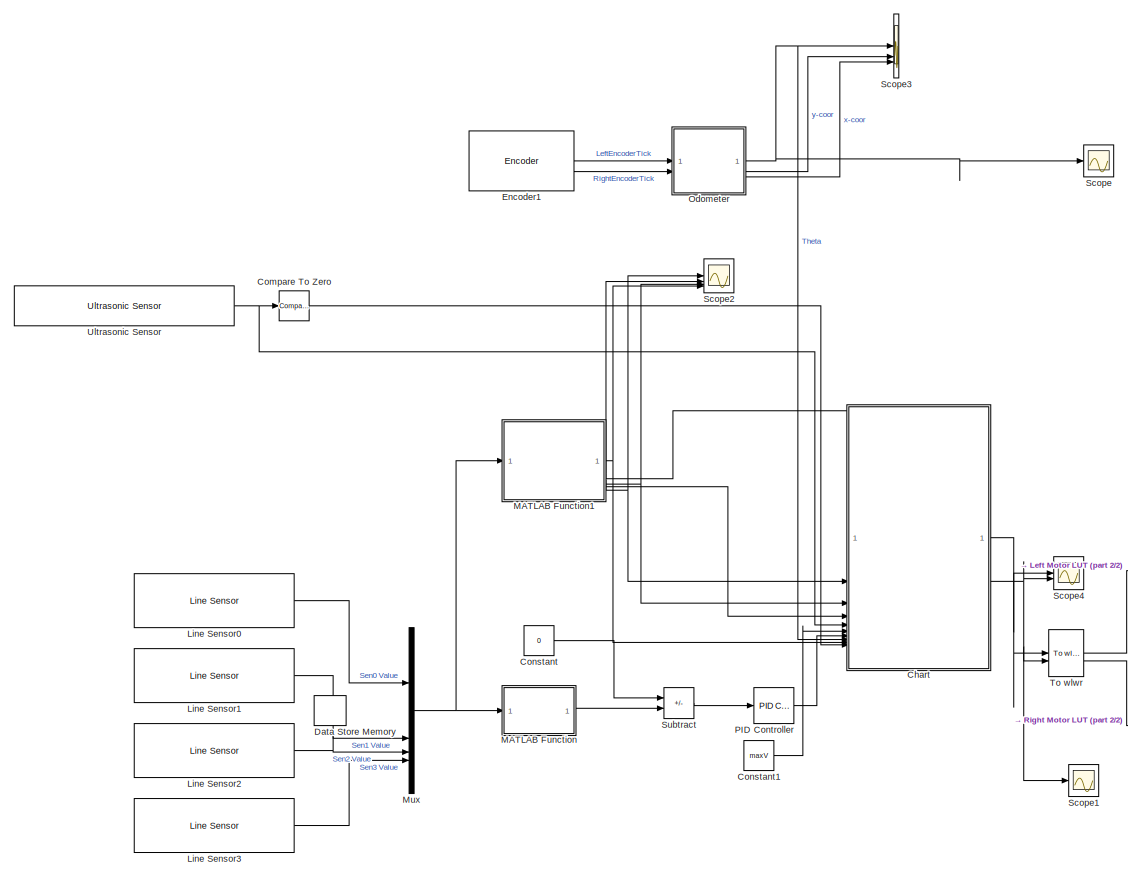
[diagram: root canvas - part 1/2, left side, full height]
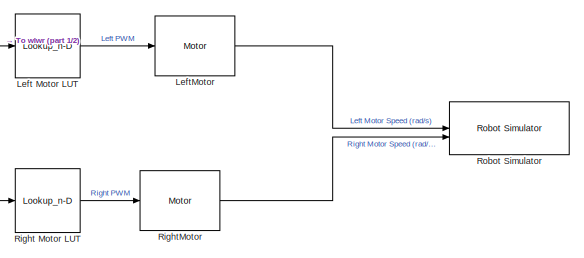
[diagram: root canvas - part 2/2, bottom right region]
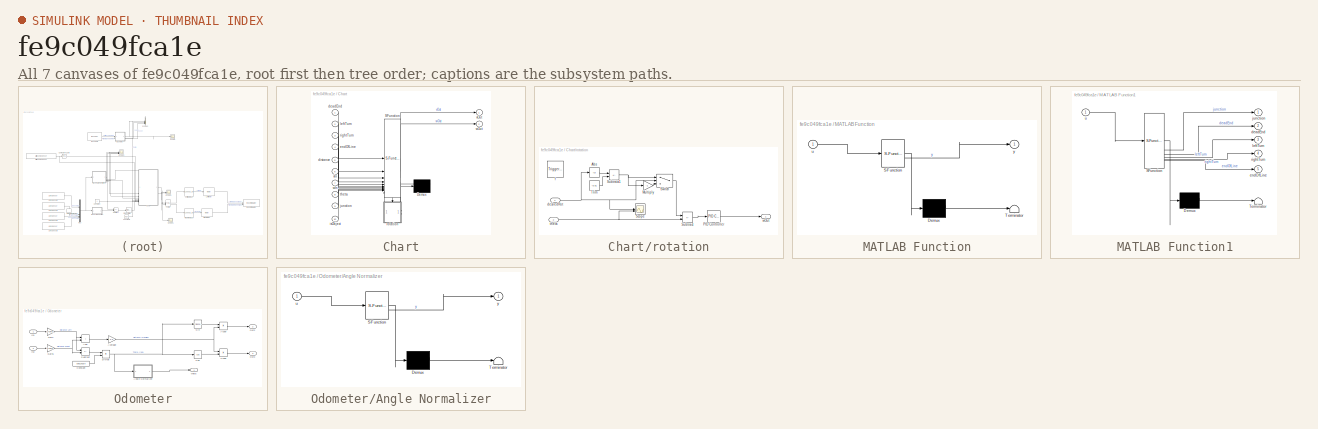
[diagram: thumbnail index - all 7 canvases of the model, root first then tree order]
MODEL slx_fe9c049fca1e
KIND model
CONFIG AbsTol = auto
CONFIG EnableMultiTasking = off
CONFIG FixedStep = 0.01
CONFIG MaxStep = auto
CONFIG MinStep = auto
CONFIG RelTol = 1e-3
CONFIG SampleTimeConstraint = Unconstrained
CONFIG SolverName = FixedStepDiscrete
CONFIG StartTime = 0.0
CONFIG StopTime = 60
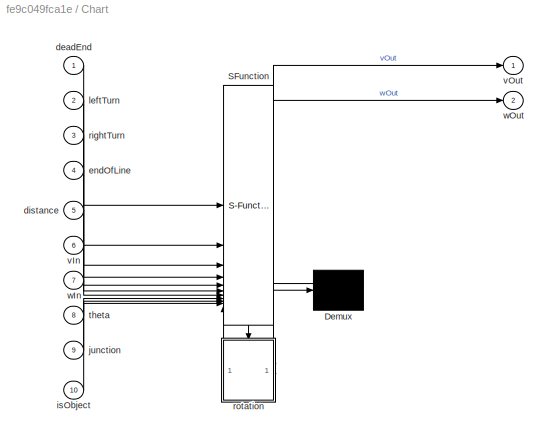
BLOCK [SubSystem] Chart
  ErrorFcn = Stateflow.Translate.translate
  PermitHierarchicalResolution = ExplicitOnly
  PortSchema = {"entries":[{"content":{"sides":[{"content":{"connectorIds":["In8","In9","In10","In4","In2","In3","In5","In6","In7"]},"type":"ConnectorPlacement.EquallySpacedRectSide","uuid":"57a3dc3c-5330-4212-9af6-f313022488fd"},{"content":{"connectorIds":["Out1","Out2"],"side":"RIGHT"},"type":"ConnectorPlacement.EquallySpacedRectSide","uuid":"1070cbf7-6ba4-437e-a2a0-cd8b795bb269"},{"content":{"connectorIds":["...<+301ch>
  SFBlockType = Chart
  TreatAsAtomicUnit = on
BLOCK [Demux] Chart/ Demux 
  Outputs = 1
BLOCK [S-Function] Chart/ SFunction 
  EnableBusSupport = on
  FunctionName = sf_sfun
  PortCounts = [11 5]
  SFcnIsStateOwnerBlock = off
  SFunctionDeploymentMode = off
  Tag = Stateflow S-Function 3
BLOCK [Inport] Chart/deadEnd
BLOCK [Inport] Chart/distance
  Port = 5
BLOCK [Inport] Chart/endOfLine
  Port = 4
BLOCK [Inport] Chart/isObject
  Port = 10
BLOCK [Inport] Chart/junction
  Port = 9
BLOCK [Inport] Chart/leftTurn
  Port = 2
BLOCK [Inport] Chart/rightTurn
  Port = 3
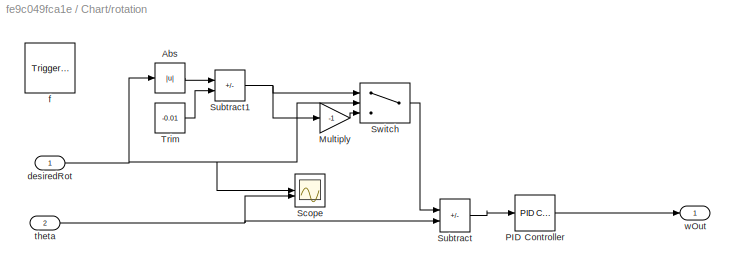
BLOCK [SubSystem] Chart/rotation
  PreDeleteFcn = Stateflow.SLINSF.SimulinkMan.removePreDeleteFcn
  UndoDeleteFcn = Stateflow.SLINSF.SimulinkMan.restorePreDeleteFcn
BLOCK [Abs] Chart/rotation/Abs
  SaturateOnIntegerOverflow = off
BLOCK [Gain] Chart/rotation/Multiply
  Gain = -1
BLOCK [Reference] Chart/rotation/PID Controller  REF=slpidlib/PID Controller
  LibrarySourceBlock = simulink/Continuous/PID Controller
  SourceBlock = slpidlib/PID Controller
  SourceType = PID 1dof
BLOCK [Scope] Chart/rotation/Scope
  Floating = off
  NumInputPorts = 2
  ScopeSpecificationString = Simulink.scopes.TimeScopeBlockCfg('CurrentConfiguration', extmgr.ConfigurationSet(extmgr.Configuration('Core','General UI',true),extmgr.Configuration('Core','Source UI',true),extmgr.Configuration('Sources','WiredSimulink',true,'DataLoggingVariableName','ScopeData3'),extmgr.Configuration('Visuals','Time Domain',true,'SerializedDisplays',{struct('MinYLimReal','-19.48538','MaxYLimReal','2.16504','YLa...<+1538ch>
BLOCK [Sum] Chart/rotation/Subtract
  IconShape = rectangular
  Inputs = +-
BLOCK [Sum] Chart/rotation/Subtract1
  IconShape = rectangular
  Inputs = +-
BLOCK [Switch] Chart/rotation/Switch
  Criteria = u2 > Threshold
  InputSameDT = off
  SaturateOnIntegerOverflow = off
BLOCK [Constant] Chart/rotation/Trim
  Value = -0.01
BLOCK [Inport] Chart/rotation/desiredRot
  OutDataTypeStr = double
  PortDimensions = 1
  SignalType = real
  VarSizeSig = No
BLOCK [TriggerPort] Chart/rotation/f
  CopyFcn = Stateflow.SLINSF.SimulinkMan.removeBlockPreDeleteFcn
  PreDeleteFcn = Stateflow.SLINSF.SimulinkMan.unsafePredeleteFcn
  StatesWhenEnabling = held
  TriggerType = function-call
  VariantControl = (inherit)
BLOCK [Inport] Chart/rotation/theta
  OutDataTypeStr = double
  Port = 2
  PortDimensions = 1
  SignalType = real
  VarSizeSig = No
BLOCK [Outport] Chart/rotation/wOut
BLOCK [Inport] Chart/theta
  Port = 8
BLOCK [Inport] Chart/vIn
  Port = 6
BLOCK [Outport] Chart/vOut
BLOCK [Inport] Chart/wIn
  Port = 7
BLOCK [Outport] Chart/wOut
  Port = 2
BLOCK [Reference] Compare To Zero  REF=simulink/Logic and Bit
Operations/Compare
To Zero
  SourceBlock = simulink/Logic and Bit\nOperations/Compare\nTo Zero
  SourceType = Compare To Zero
BLOCK [Constant] Constant
  Value = 0
BLOCK [Constant] Constant1
  Value = maxV
BLOCK [DataStoreMemory] Data Store Memory
  DataStoreName = objectDist
  ShowAdditionalParam = off
  WriteAfterWriteMsg = warning
BLOCK [Reference] Encoder1  REF=mobileRoboticsTrainingLib/Encoder
  SourceBlock = mobileRoboticsTrainingLib/Encoder
  SourceProductName = Mobile Robotics Training Library
  SourceType = Encoder Simulation
BLOCK [Lookup_n-D] Left Motor LUT
  BreakpointsForDimension1 = WheelSpeed
  ExtrapMethod = Clip
  InputPortMap = u0
  InternalRulePriority = Speed
  InterpMethod = Nearest
  NumberOfTableDimensions = 1
  RndMeth = Simplest
  Table = InputPWM
BLOCK [Reference] LeftMotor  REF=mobileRoboticsTrainingLib/Motor
  SourceBlock = mobileRoboticsTrainingLib/Motor
  SourceProductName = Mobile Robotics Training Library
  SourceType = Motor Model
BLOCK [Reference] Line Sensor0  REF=mobileRoboticsTrainingLib/Line Sensor
  SourceBlock = mobileRoboticsTrainingLib/Line Sensor
  SourceProductName = Mobile Robotics Training Library
  SourceType = Line Sensor Simulation
BLOCK [Reference] Line Sensor1  REF=mobileRoboticsTrainingLib/Line Sensor
  SourceBlock = mobileRoboticsTrainingLib/Line Sensor
  SourceProductName = Mobile Robotics Training Library
  SourceType = Line Sensor Simulation
BLOCK [Reference] Line Sensor2  REF=mobileRoboticsTrainingLib/Line Sensor
  SourceBlock = mobileRoboticsTrainingLib/Line Sensor
  SourceProductName = Mobile Robotics Training Library
  SourceType = Line Sensor Simulation
BLOCK [Reference] Line Sensor3  REF=mobileRoboticsTrainingLib/Line Sensor
  SourceBlock = mobileRoboticsTrainingLib/Line Sensor
  SourceProductName = Mobile Robotics Training Library
  SourceType = Line Sensor Simulation
BLOCK [SubSystem] MATLAB Function
  ErrorFcn = Stateflow.Translate.translate
  LibrarySourceBlock = simulink/User-Defined\nFunctions/MATLAB Function
  PermitHierarchicalResolution = ExplicitOnly
  SFBlockType = MATLAB Function
  TreatAsAtomicUnit = on
BLOCK [Demux] MATLAB Function/ Demux 
  Outputs = 1
BLOCK [S-Function] MATLAB Function/ SFunction 
  EnableBusSupport = on
  FunctionName = sf_sfun
  PortCounts = [1 2]
  SFcnIsStateOwnerBlock = off
  SFunctionDeploymentMode = off
  Tag = Stateflow S-Function 2
BLOCK [Terminator] MATLAB Function/ Terminator 
BLOCK [Inport] MATLAB Function/u
BLOCK [Outport] MATLAB Function/y
BLOCK [SubSystem] MATLAB Function1
  ErrorFcn = Stateflow.Translate.translate
  LibrarySourceBlock = simulink/User-Defined\nFunctions/MATLAB Function
  PermitHierarchicalResolution = ExplicitOnly
  SFBlockType = MATLAB Function
  TreatAsAtomicUnit = on
BLOCK [Demux] MATLAB Function1/ Demux 
  Outputs = 1
BLOCK [S-Function] MATLAB Function1/ SFunction 
  EnableBusSupport = on
  FunctionName = sf_sfun
  PortCounts = [1 6]
  SFcnIsStateOwnerBlock = off
  SFunctionDeploymentMode = off
  Tag = Stateflow S-Function 1
BLOCK [Terminator] MATLAB Function1/ Terminator 
BLOCK [Outport] MATLAB Function1/deadEnd
  Port = 2
BLOCK [Outport] MATLAB Function1/endOfLine
  Port = 5
BLOCK [Outport] MATLAB Function1/junction
BLOCK [Outport] MATLAB Function1/leftTurn
  Port = 3
BLOCK [Outport] MATLAB Function1/rightTurn
  Port = 4
BLOCK [Inport] MATLAB Function1/u
BLOCK [Mux] Mux
  DisplayOption = bar
BLOCK [SubSystem] Odometer
BLOCK [Sum] Odometer/Add
  IconShape = rectangular
BLOCK [SubSystem] Odometer/Angle Normalizer
  ErrorFcn = Stateflow.Translate.translate
  LibrarySourceBlock = simulink/User-Defined\nFunctions/MATLAB Function
  PermitHierarchicalResolution = ExplicitOnly
  SFBlockType = MATLAB Function
  TreatAsAtomicUnit = on
BLOCK [Demux] Odometer/Angle Normalizer/ Demux 
  Outputs = 1
BLOCK [S-Function] Odometer/Angle Normalizer/ SFunction 
  EnableBusSupport = on
  FunctionName = sf_sfun
  PortCounts = [1 2]
  SFcnIsStateOwnerBlock = off
  SFunctionDeploymentMode = off
  Tag = Stateflow S-Function 4
BLOCK [Terminator] Odometer/Angle Normalizer/ Terminator 
BLOCK [Inport] Odometer/Angle Normalizer/u
BLOCK [Outport] Odometer/Angle Normalizer/y
BLOCK [Gain] Odometer/Average
  Gain = 0.5
BLOCK [Constant] Odometer/Constant
  Value = axleLength
BLOCK [Trigonometry] Odometer/Cos
  Operator = cos
  OutputSignalType = real
BLOCK [Product] Odometer/Divide
  Inputs = */
BLOCK [Gain] Odometer/Gain
  Gain = (2*pi*wheelR)/ticksPerRot
BLOCK [Gain] Odometer/Gain1
  Gain = (2*pi*wheelR)/ticksPerRot
BLOCK [Inport] Odometer/In1
BLOCK [Inport] Odometer/In2
  Port = 2
BLOCK [Outport] Odometer/Out2
  Port = 2
BLOCK [Outport] Odometer/Out3
  Port = 3
BLOCK [Trigonometry] Odometer/Sin
  OutputSignalType = real
BLOCK [Sum] Odometer/Subtract
  IconShape = rectangular
  Inputs = -+
BLOCK [Outport] Odometer/theta
BLOCK [Product] Odometer/x-coor
BLOCK [Product] Odometer/y-coor
BLOCK [Reference] PID Controller  REF=slpidlib/PID Controller
  LibrarySourceBlock = simulink/Continuous/PID Controller
  SourceBlock = slpidlib/PID Controller
  SourceType = PID 1dof
BLOCK [Lookup_n-D] Right Motor LUT
  BreakpointsForDimension1 = WheelSpeed
  ExtrapMethod = Clip
  InputPortMap = u0
  InternalRulePriority = Speed
  InterpMethod = Nearest
  NumberOfTableDimensions = 1
  RndMeth = Simplest
  Table = InputPWM
BLOCK [Reference] RightMotor  REF=mobileRoboticsTrainingLib/Motor
  SourceBlock = mobileRoboticsTrainingLib/Motor
  SourceProductName = Mobile Robotics Training Library
  SourceType = Motor Model
BLOCK [Reference] Robot Simulator  REF=mobileRoboticsTrainingLib/Robot Simulator
  Priority = 99
  SourceBlock = mobileRoboticsTrainingLib/Robot Simulator
  SourceProductName = Mobile Robotics Training Library
  SourceType = Robot Simulator
BLOCK [Scope] Scope
  Floating = off
  NumInputPorts = 1
  ScopeSpecificationString = Simulink.scopes.TimeScopeBlockCfg('CurrentConfiguration', extmgr.ConfigurationSet(extmgr.Configuration('Core','General UI',true),extmgr.Configuration('Core','Source UI',true),extmgr.Configuration('Sources','WiredSimulink',true,'DataLoggingVariableName','ScopeData1'),extmgr.Configuration('Visuals','Time Domain',true,'SerializedDisplays',{struct('MinYLimReal','-2.63166','MaxYLimReal','7.21469','YLab...<+1406ch>
BLOCK [Scope] Scope1
  Floating = off
  NumInputPorts = 1
  ScopeSpecificationString = Simulink.scopes.TimeScopeBlockCfg('CurrentConfiguration', extmgr.ConfigurationSet(extmgr.Configuration('Core','General UI',true),extmgr.Configuration('Core','Source UI',true),extmgr.Configuration('Sources','WiredSimulink',true,'DataLoggingVariableName','ScopeData2'),extmgr.Configuration('Visuals','Time Domain',true,'SerializedDisplays',{struct('MinYLimReal','-15.11875','MaxYLimReal','35.23542','YL...<+1417ch>
BLOCK [Scope] Scope2
  Floating = off
  NumInputPorts = 4
  ScopeSpecificationString = Simulink.scopes.TimeScopeBlockCfg('CurrentConfiguration', extmgr.ConfigurationSet(extmgr.Configuration('Core','General UI',true),extmgr.Configuration('Core','Source UI',true),extmgr.Configuration('Sources','WiredSimulink',true,'DataLoggingVariableName','ScopeData1'),extmgr.Configuration('Visuals','Time Domain',true,'SerializedDisplays',{struct('MinYLimReal','0.9893','MaxYLimReal','1.00214','YLabel...<+1519ch>
BLOCK [Scope] Scope3
  Floating = off
  NumInputPorts = 3
  ScopeSpecificationString = Simulink.scopes.TimeScopeBlockCfg('CurrentConfiguration', extmgr.ConfigurationSet(extmgr.Configuration('Core','General UI',true),extmgr.Configuration('Core','Source UI',true),extmgr.Configuration('Sources','WiredSimulink',true),extmgr.Configuration('Visuals','Time Domain',true,'SerializedDisplays',{struct('MinYLimReal','-298.33028','MaxYLimReal','1593.00983','YLabelReal','','MinYLimMag',' 0.00000'...<+1418ch>
BLOCK [Scope] Scope4
  Floating = off
  NumInputPorts = 2
  ScopeSpecificationString = Simulink.scopes.TimeScopeBlockCfg('CurrentConfiguration', extmgr.ConfigurationSet(extmgr.Configuration('Core','General UI',true),extmgr.Configuration('Core','Source UI',true),extmgr.Configuration('Sources','WiredSimulink',true,'DataLoggingVariableName','ScopeData1'),extmgr.Configuration('Visuals','Time Domain',true,'SerializedDisplays',{struct('MinYLimReal','-2335.47917','MaxYLimReal','999.3125','...<+1438ch>
BLOCK [Sum] Subtract
  IconShape = rectangular
  Inputs = +-
BLOCK [Reference] To wlwr  REF=mobileRoboticsTrainingLib/To wlwr
  SourceBlock = mobileRoboticsTrainingLib/To wlwr
  SourceProductName = Mobile Robotics Training Library
  SourceType = To wlwr
BLOCK [Reference] Ultrasonic Sensor  REF=mobileRoboticsTrainingLib/Ultrasonic Sensor
  SourceBlock = mobileRoboticsTrainingLib/Ultrasonic Sensor
  SourceProductName = Mobile Robotics Training Library
  SourceType = Ultrasonic Sensor Simulation
NET Chart:1 -> Scope4:1, To wlwr:1
NET Chart:2 -> Scope1:1, Scope4:2, To wlwr:2
LINE Compare To Zero:1 -> Chart:10
LINE Constant1:1 -> Chart:6
LINE Constant:1 -> Subtract:1
LINE Encoder1:1 -> Odometer:1
LINE Encoder1:2 -> Odometer:2
LINE Left Motor LUT:1 -> LeftMotor:1
LINE LeftMotor:1 -> Robot Simulator:1
LINE Line Sensor0:1 -> Mux:1
LINE Line Sensor1:1 -> Mux:2
LINE Line Sensor2:1 -> Mux:3
LINE Line Sensor3:1 -> Mux:4
NET MATLAB Function1:1 -> Chart:9, Scope2:4
NET MATLAB Function1:2 -> Chart:1, Scope2:2
NET MATLAB Function1:3 -> Chart:2, Scope2:1
NET MATLAB Function1:4 -> Chart:3, Scope2:3
LINE MATLAB Function1:5 -> Chart:4
LINE MATLAB Function:1 -> Subtract:2
NET Mux:1 -> MATLAB Function1:1, MATLAB Function:1
LINE Odometer/Add:1 -> Odometer/Average:1
LINE Odometer/Angle Normalizer:1 -> Odometer/theta:1
NET Odometer/Average:1 -> Odometer/x-coor:1, Odometer/y-coor:2
LINE Odometer/Constant:1 -> Odometer/Divide:2
LINE Odometer/Cos:1 -> Odometer/x-coor:2
NET Odometer/Divide:1 -> Odometer/Angle Normalizer:1, Odometer/Cos:1, Odometer/Sin:1
NET Odometer/Gain1:1 -> Odometer/Add:2, Odometer/Subtract:2
NET Odometer/Gain:1 -> Odometer/Add:1, Odometer/Subtract:1
LINE Odometer/In1:1 -> Odometer/Gain:1
LINE Odometer/In2:1 -> Odometer/Gain1:1
LINE Odometer/Sin:1 -> Odometer/y-coor:1
LINE Odometer/Subtract:1 -> Odometer/Divide:1
LINE Odometer/x-coor:1 -> Odometer/Out3:1
LINE Odometer/y-coor:1 -> Odometer/Out2:1
NET Odometer:1 -> Chart:8, Scope3:1, Scope:1
LINE Odometer:2 -> Scope3:2
LINE Odometer:3 -> Scope3:3
LINE PID Controller:1 -> Chart:7
LINE Right Motor LUT:1 -> RightMotor:1
LINE RightMotor:1 -> Robot Simulator:2
LINE Subtract:1 -> PID Controller:1
LINE To wlwr:1 -> Left Motor LUT:1
LINE To wlwr:2 -> Right Motor LUT:1
NET Ultrasonic Sensor:1 -> Chart:5, Compare To Zero:1
note: NET lines group one-source signal fan-out (src -> all destinations, sorted); 1:1 wires keep LINE
CHART MATLAB Function1 states=1 transitions=1
  STATE_LABEL 'eML_blk_kernel()'
  STATE_LABEL 'SCRIPT:\nfunction [junction, deadEnd, leftTurn, rightTurn, endOfLine]  = fcn(u)\ntotalZero = 0;\ndeadEnd = false;\njunction = false;\nendOfLine = false;\nleftTurn = 0;\nrightTurn = 0;\n\nfor i=1:1:size(u, 1)\n    if (u(i) == 2800)\n        totalZero = totalZero + 1;\n    end\nend\n\nif u(1, 1) == 2900 && u(4, 1) == 2900\n    junction = true; %at junction, possible object\n\nelseif u(1, 1) == 2900 && u(4, 1) == 2800...<+523ch>'
CHART MATLAB Function states=1 transitions=1
  STATE_LABEL 'eML_blk_kernel()'
  STATE_LABEL 'SCRIPT:\nfunction y = fcn(u)\ntotalZero = 0;\nfor i=1:1:size(u, 1)\n    if (u(i) == 2800)\n        totalZero = totalZero + 1;\n    end\nend\n\nif totalZero == 0\n    y = -10;\nelse\n    y = ((u(1)*-2)+(u(2)*-1)+(u(3)*1)+(u(4)*2))/totalZero;\nend\n'
CHART Chart states=12 transitions=22
  STATE_LABEL 'RightTurn\nentry, during:\nvOut = 0.02\ndesTheta = initTheta-pi/2\nwOut  = rotation(desTheta,theta)\nisRight = true\nif hasTurned == true\n    hasTurned = false\n    isRight = false\nend\n'
  STATE_LABEL 'LeftTurn\nentry, during:\nvOut = 0.02\ndesTheta = initTheta+pi/2\nwOut  = rotation(desTheta,theta)\nisRight = false\nif hasTurned == true\n    hasTurned = false\nelse\n    hasTurned = true\nend'
  STATE_LABEL 'CheckR\nafter(0.1,sec)'
  STATE_LABEL 'CheckL\nafter(0.1,sec)'
  STATE_LABEL 'initialize\nentry: hasTurned = false\n isRight = false'
  STATE_LABEL 'lineStopDetected\nentry, during: vOut=0.0\n wOut = 0\n initTheta = theta\n'
  STATE_LABEL 'lineFollowing\nentry, during:\nwOut = wIn\nvOut = vIn\n'
  STATE_LABEL 'Stop\nentry: vOut = -0.01\n wOut = 0'
  STATE_LABEL 'wOut = rotation(desiredRot, theta)'
  STATE_LABEL 'Start\nentry: vOut = 0\n wOut = 0'
  STATE_LABEL 'turnAround\nentry, during:\nvOut = 0\ndesTheta = initTheta-pi\nwOut  = rotation(desTheta,theta)\nhasTurned = true\n'
  STATE_LABEL 'measureObject\nentry:  objectDist = distance'
CHART Odometer/Angle Normalizer states=1 transitions=1
  STATE_LABEL 'eML_blk_kernel()'
  STATE_LABEL 'SCRIPT:\nfunction y = fcn(u)\nif u>2*pi\n    y = mod(u,2*pi);\nelse\n    y = u;\nend\n'
CHART  states=0 transitions=0
CHART  states=0 transitions=0
CHART  states=0 transitions=0
CHART  states=0 transitions=0
